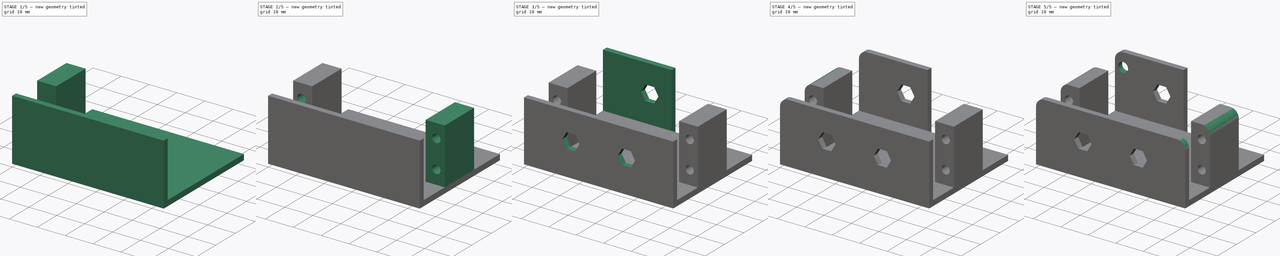
[diagram: build sequence overview — one tinted view per stage of 5, left to right]
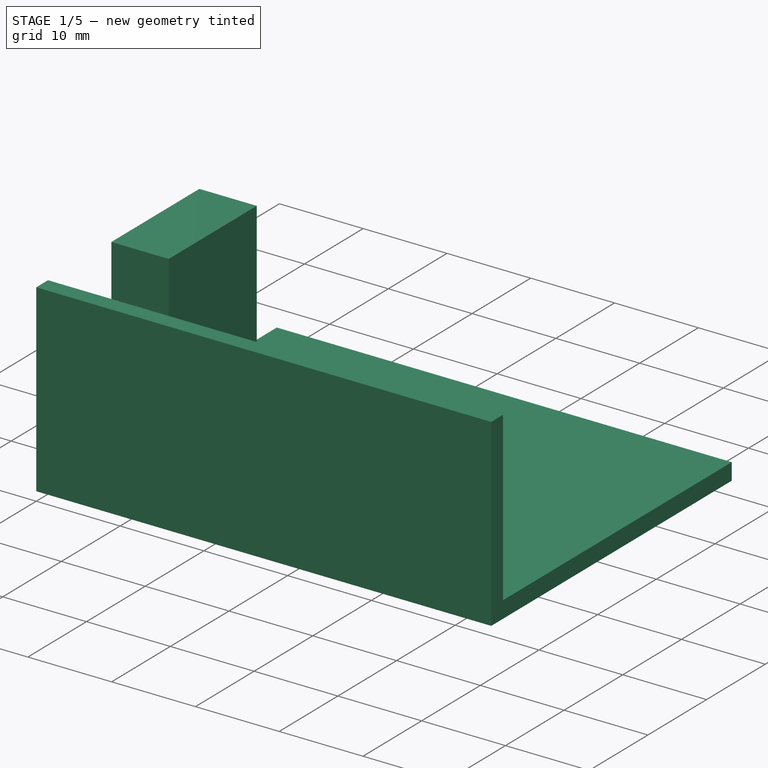
[diagram: stage 1 of 5 — iso view after this stage's code; geometry added in this stage tinted green]
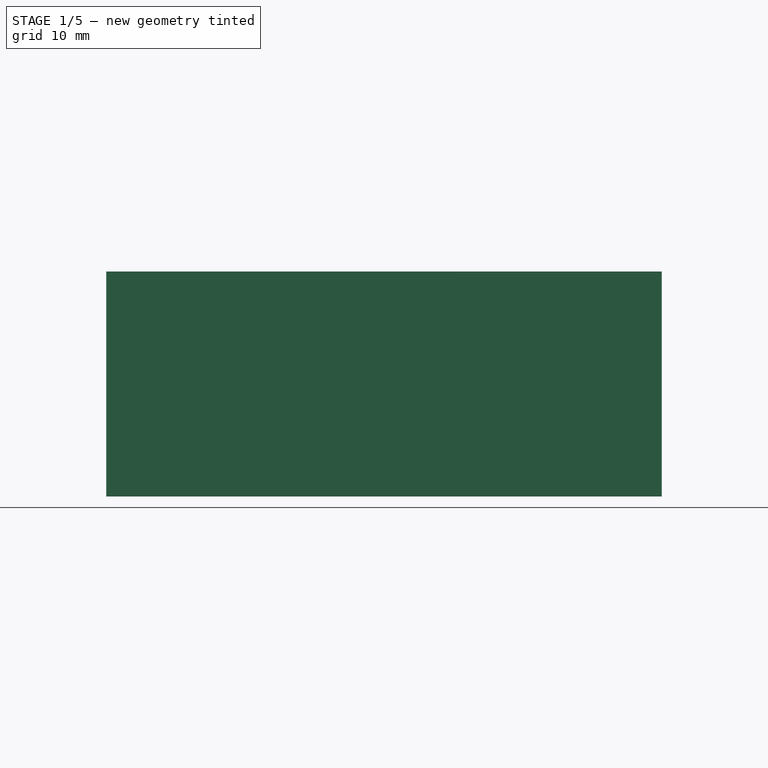
[diagram: stage 1 of 5 — front view after this stage's code; geometry added in this stage tinted green]
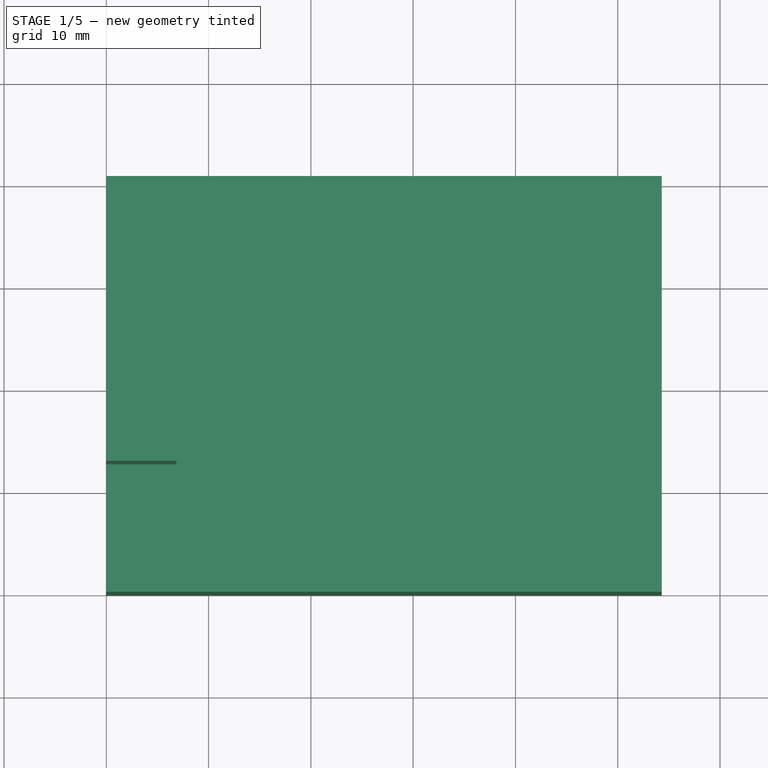
[diagram: stage 1 of 5 — top view after this stage's code; geometry added in this stage tinted green]
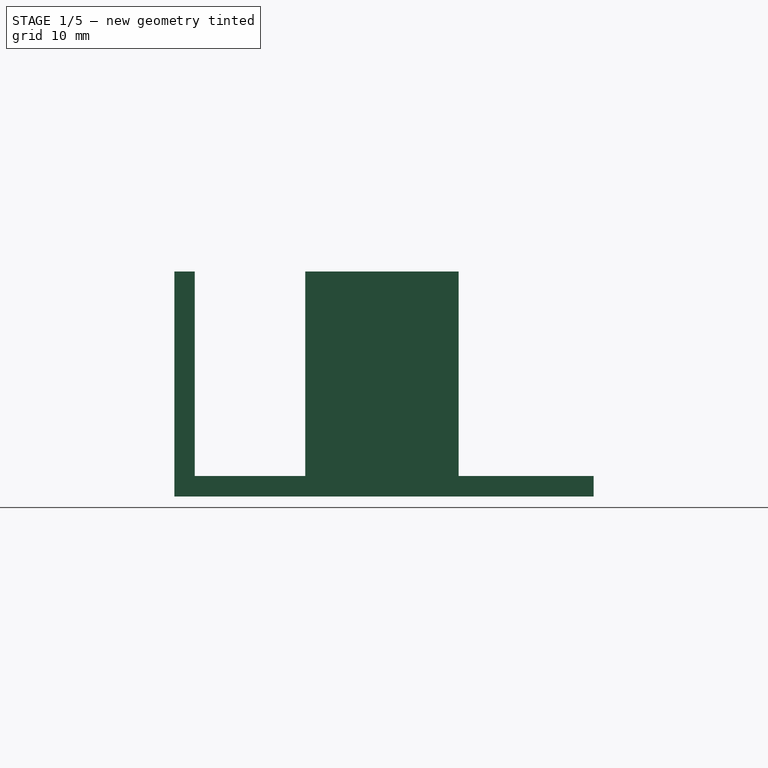
[diagram: stage 1 of 5 — right view after this stage's code; geometry added in this stage tinted green]
FCSTD DOCUMENT  (FreeCAD 0.20R29177 +426 (Git))
Label: headBigServoHolder
License: All rights reserved
LicenseURL: http://en.wikipedia.org/wiki/All_rights_reserved
objects: Sketcher::SketchObject×10, PartDesign::Pad×5, PartDesign::Pocket×5, PartDesign::Fillet×5, Spreadsheet::Sheet×1, PartDesign::Body×1
note: 41 computed .brp shape members not serialized (recipe doc carries the construction recipe); baked Part::Feature solids carry a one-line shape summary decoded from their .brp

FEATURE [Spreadsheet::Sheet] Spreadsheet
  cells = A1=tolerance; B1(tolerance)=0.2; A2=thickness; B2(thickness)=2; A3=servo_outer_x; B3(servo_x)=54.3; A4=servo_inner_x; B4(servo_inner_x)=40.2; A5=servo_y; B5(servo_y)=39; D5=sketch 41,5 real 38,0; A6=servo_z; B6(servo_z)=20; A7=foothold_y_len; B7(foothold_y_len)=15; A8=foothold_y_pos; B8(foothold_y_pos)==25.8 + B2; C8=c; D8=sketch 27.8 real 25,1; A9=foothold_z_len; B9(foothold_z_len)==B6 + B2; C9=c; A10=foothold_x_len; B10(foothold_x_len)==(B3 - B4) / 2 - B1; C10=c; A11=upper_hole_z_pos; B11(upper_hole_z_pos)==15 + B2; C11=c; A12=lower_hole_z_pos; B12(lower_hole_z_pos)==5 + B2; C12=c; A13=hole_x_pos; B13(hole_x_pos)=3; A14=hole_diameter; B14(hole_diameter)=3; A15=axis_x_pos; B15(axis_x_pos)=37.25; A16=axis_z_pos; B16(axis_z_pos)==10 + B2; A17=axis_y_pos; B17(axis_y_pos)=0; A18=axis_diameter; B18(axis_diameter)=5.9; A19=axis_length; B19(axis_length)=5; A20=plate_y_dim; B20(plate_y_dim)==B5 + B2; C20=c
FEATURE [Sketcher::SketchObject] Sketch
  FullyConstrained = true
  MapMode = 5
  Support = -> [XY_Plane]
  expr: Constraints[10] = Spreadsheet.servo_y
  expr: Constraints[11] = Spreadsheet.thickness
  expr: Constraints[9] = Spreadsheet.servo_x
  sketch-geometry (4):
    g0: LineSegment StartX=0 StartY=41 StartZ=0 EndX=54.3 EndY=41 EndZ=0
    g1: LineSegment StartX=54.3 StartY=41 StartZ=0 EndX=54.3 EndY=2 EndZ=0
    g2: LineSegment StartX=54.3 StartY=2 StartZ=0 EndX=0 EndY=2 EndZ=0
    g3: LineSegment StartX=0 StartY=2 StartZ=0 EndX=0 EndY=41 EndZ=0
  constraints (12):
    c: Coincident(g0,g1)
    c: Coincident(g1,g2)
    c: Coincident(g2,g3)
    c: Coincident(g3,g0)
    c: Horizontal(g0)
    c: Horizontal(g2)
    c: Vertical(g1)
    c: Vertical(g3)
    c: PointOnObject(g0,g-2)
    c: DistanceX(g2,g2) = 54.3
    c: DistanceY(g3,g3) = 39
    c: DistanceY(g-1,g2) = 2
FEATURE [PartDesign::Pad] Pad  label="plate"
  Direction = (0,0,1)
  Length = 2
  Length2 = 10
  Profile = -> Sketch
  ReferenceAxis = -> Sketch [N_Axis]
  Type = 0
  expr: Length = Spreadsheet.thickness
FEATURE [Sketcher::SketchObject] Sketch001
  ExternalGeometry = -> [Pad]
  FullyConstrained = true
  MapMode = 5
  Support = -> [XY_Plane]
  expr: Constraints[7] = 2
  sketch-geometry (4):
    g0: LineSegment StartX=0 StartY=0 StartZ=0 EndX=54.3 EndY=0 EndZ=0
    g1: LineSegment StartX=54.3 StartY=0 StartZ=0 EndX=54.3 EndY=2 EndZ=0
    g2: LineSegment StartX=54.3 StartY=2 StartZ=0 EndX=0 EndY=2 EndZ=0
    g3: LineSegment StartX=0 StartY=2 StartZ=0 EndX=0 EndY=0 EndZ=0
  constraints (10):
    c: Coincident(g0,g1)
    c: Coincident(g1,g2)
    c: Coincident(g2,g3)
    c: Coincident(g3,g0)
    c: Horizontal(g0)
    c: Vertical(g1)
    c: Vertical(g3)
    c: DistanceY(g1,g1) = 2
    c: Coincident(g1,g-3)
    c: Coincident(g2,g-3)
FEATURE [PartDesign::Pad] Pad001  label="back"
  BaseFeature = -> Pad
  Direction = (0,0,1)
  Length = 22
  Length2 = 10
  Profile = -> Sketch001
  ReferenceAxis = -> Sketch001 [N_Axis]
  Type = 0
  expr: Length = Spreadsheet.servo_z + Spreadsheet.thickness
FEATURE [Sketcher::SketchObject] Sketch003
  FullyConstrained = true
  MapMode = 5
  Support = -> [XY_Plane]
  expr: Constraints[10] = Spreadsheet.foothold_y_len
  expr: Constraints[11] = Spreadsheet.foothold_x_len
  expr: Constraints[9] = Spreadsheet.foothold_y_pos
  sketch-geometry (4):
    g0: LineSegment StartX=0 StartY=27.8 StartZ=0 EndX=6.85 EndY=27.8 EndZ=0
    g1: LineSegment StartX=6.85 StartY=27.8 StartZ=0 EndX=6.85 EndY=12.8 EndZ=0
    g2: LineSegment StartX=6.85 StartY=12.8 StartZ=0 EndX=0 EndY=12.8 EndZ=0
    g3: LineSegment StartX=0 StartY=12.8 StartZ=0 EndX=0 EndY=27.8 EndZ=0
  constraints (12):
    c: Coincident(g0,g1)
    c: Coincident(g1,g2)
    c: Coincident(g2,g3)
    c: Coincident(g3,g0)
    c: Horizontal(g0)
    c: Horizontal(g2)
    c: Vertical(g1)
    c: Vertical(g3)
    c: PointOnObject(g0,g-2)
    c: DistanceY(g-1,g0) = 27.8
    c: DistanceY(g2,g0) = 15
    c: DistanceX(g2,g1) = 6.85
FEATURE [PartDesign::Pad] Pad003  label="foothold_left"
  BaseFeature = -> Pad001
  Direction = (0,0,1)
  Length = 22
  Length2 = 10
  Profile = -> Sketch003
  ReferenceAxis = -> Sketch003 [N_Axis]
  Type = 0
  expr: Length = Spreadsheet.foothold_z_len
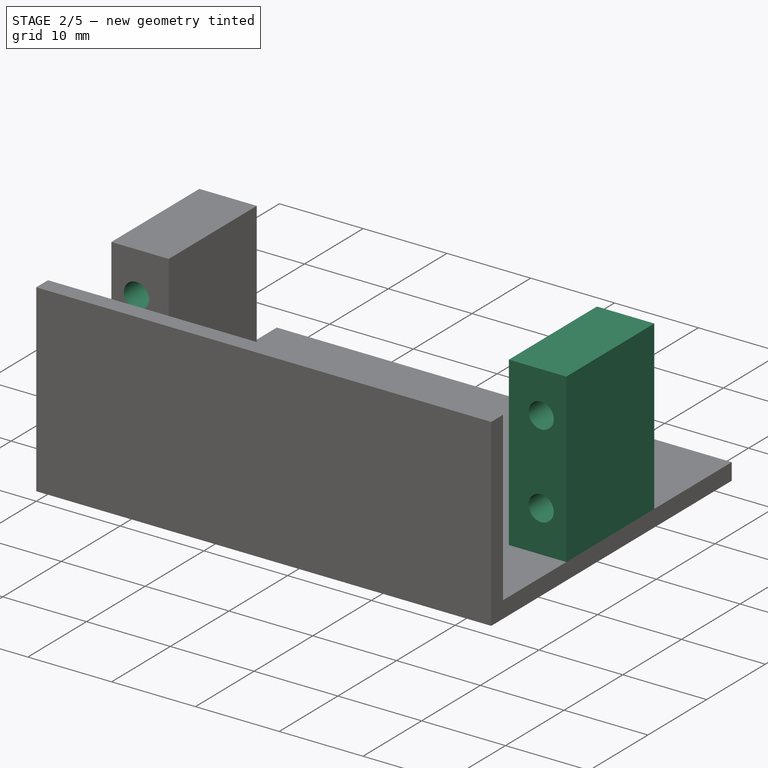
[diagram: stage 2 of 5 — iso view after this stage's code; geometry added in this stage tinted green]
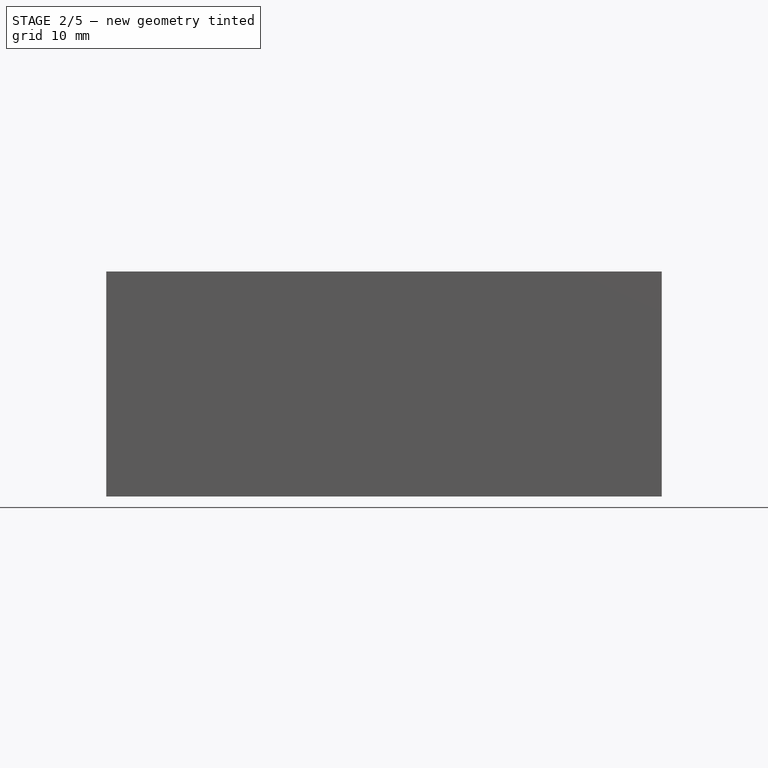
[diagram: stage 2 of 5 — front view after this stage's code; geometry added in this stage tinted green]
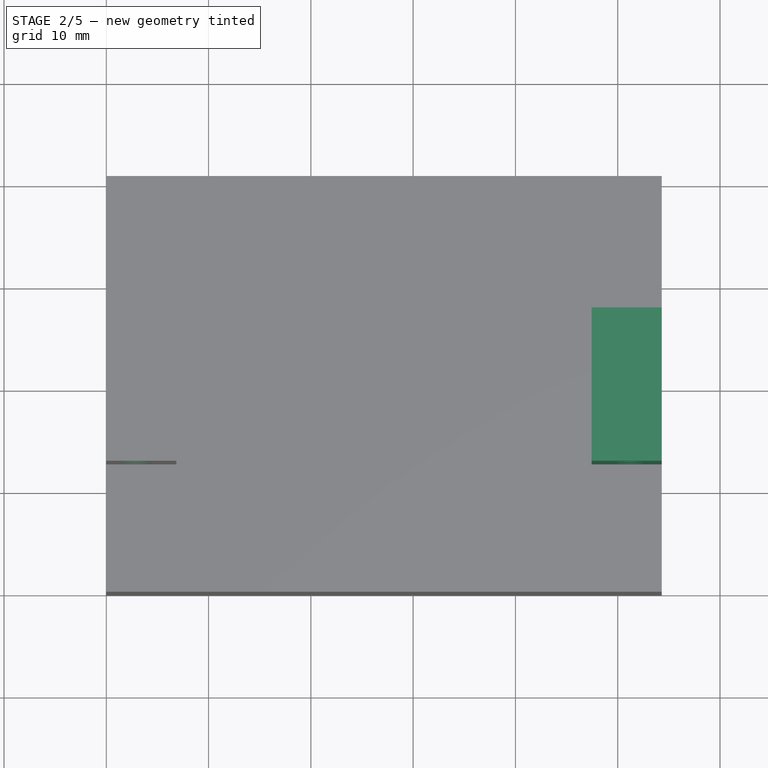
[diagram: stage 2 of 5 — top view after this stage's code; geometry added in this stage tinted green]
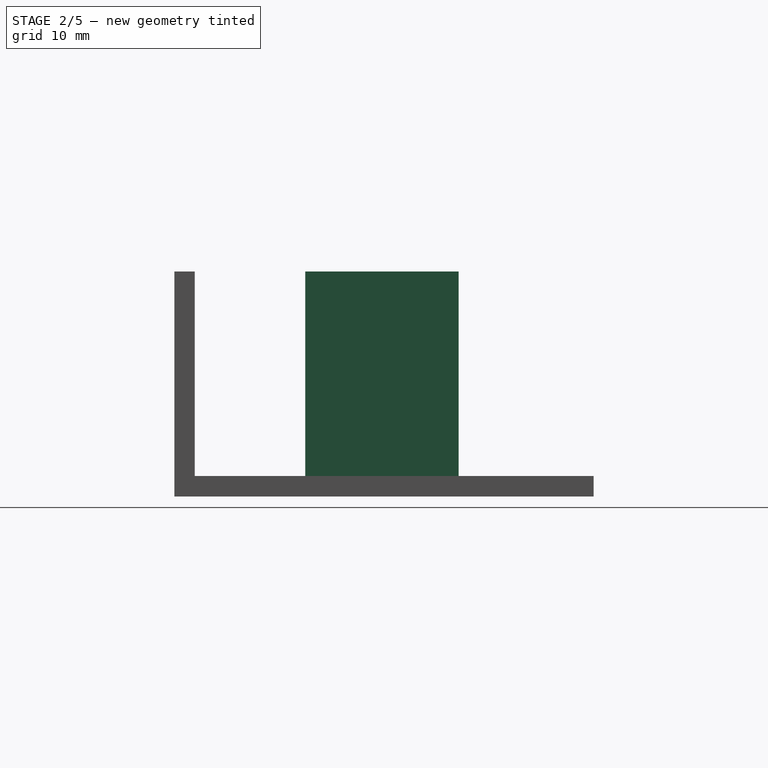
[diagram: stage 2 of 5 — right view after this stage's code; geometry added in this stage tinted green]
FEATURE [Sketcher::SketchObject] Sketch004
  FullyConstrained = true
  MapMode = 5
  Placement = pos=(0,27.8,0) rot=(0,0.707107,0.707107;3.14159rad)
  Support = -> [Pad003]
  expr: Constraints[0] = Spreadsheet.upper_hole_z_pos
  expr: Constraints[1] = Spreadsheet.lower_hole_z_pos
  expr: Constraints[2] = Spreadsheet.hole_x_pos
  expr: Constraints[4] = Spreadsheet.hole_diameter
  expr: Constraints[5] = Spreadsheet.hole_diameter
  sketch-geometry (2):
    g0: Circle CenterX=-3 CenterY=17 CenterZ=0 NormalX=0 NormalY=0 NormalZ=1 AngleXU=0 Radius=1.5
    g1: Circle CenterX=-3 CenterY=7 CenterZ=0 NormalX=0 NormalY=0 NormalZ=1 AngleXU=0 Radius=1.5
  constraints (6):
    c: DistanceY(g-1,g0) = 17
    c: DistanceY(g-1,g1) = 7
    c: DistanceX(g1,g-1) = 3
    c: Vertical(g0,g1)
    c: Diameter(g1) = 3
    c: Diameter(g0) = 3
FEATURE [PartDesign::Pocket] Pocket  label="foothold_left_holes"
  BaseFeature = -> Pad003
  Direction = (0,-1,2e-16)
  Length = 15
  Length2 = 5
  Profile = -> Sketch004
  ReferenceAxis = -> Sketch004 [N_Axis]
  Type = 0
  expr: Length = Spreadsheet.foothold_y_len
FEATURE [Sketcher::SketchObject] Sketch005
  ExternalGeometry = -> [Pocket]
  FullyConstrained = true
  MapMode = 5
  Support = -> [XY_Plane]
  expr: Constraints[10] = Spreadsheet.foothold_y_pos
  expr: Constraints[8] = Spreadsheet.foothold_y_len
  expr: Constraints[9] = Spreadsheet.foothold_x_len
  sketch-geometry (4):
    g0: LineSegment StartX=47.45 StartY=27.8 StartZ=0 EndX=54.3 EndY=27.8 EndZ=0
    g1: LineSegment StartX=54.3 StartY=27.8 StartZ=0 EndX=54.3 EndY=12.8 EndZ=0
    g2: LineSegment StartX=54.3 StartY=12.8 StartZ=0 EndX=47.45 EndY=12.8 EndZ=0
    g3: LineSegment StartX=47.45 StartY=12.8 StartZ=0 EndX=47.45 EndY=27.8 EndZ=0
  constraints (12):
    c: Coincident(g0,g1)
    c: Coincident(g1,g2)
    c: Coincident(g2,g3)
    c: Coincident(g3,g0)
    c: Horizontal(g0)
    c: Horizontal(g2)
    c: Vertical(g1)
    c: Vertical(g3)
    c: DistanceY(g1,g0) = 15
    c: DistanceX(g0,g0) = 6.85
    c: DistanceY(g-1,g0) = 27.8
    c: Vertical(g1,g-4)
FEATURE [PartDesign::Pad] Pad004  label="foothold_right"
  BaseFeature = -> Pocket
  Direction = (0,0,1)
  Length = 22
  Length2 = 10
  Profile = -> Sketch005
  ReferenceAxis = -> Sketch005 [N_Axis]
  Type = 0
  expr: Length = Spreadsheet.foothold_z_len
FEATURE [Sketcher::SketchObject] Sketch006
  ExternalGeometry = -> [Pad004]
  FullyConstrained = true
  MapMode = 5
  Placement = pos=(0,27.8,0) rot=(0,0.707107,0.707107;3.14159rad)
  Support = -> [Pad004]
  expr: Constraints[0] = Spreadsheet.lower_hole_z_pos
  expr: Constraints[1] = Spreadsheet.hole_diameter
  expr: Constraints[2] = Spreadsheet.hole_diameter
  expr: Constraints[3] = Spreadsheet.upper_hole_z_pos
  expr: Constraints[4] = Spreadsheet.hole_x_pos
  expr: Constraints[5] = Spreadsheet.hole_x_pos
  sketch-geometry (2):
    g0: Circle CenterX=-51.3 CenterY=17 CenterZ=0 NormalX=0 NormalY=0 NormalZ=1 AngleXU=0 Radius=1.5
    g1: Circle CenterX=-51.3 CenterY=7 CenterZ=0 NormalX=0 NormalY=0 NormalZ=1 AngleXU=0 Radius=1.5
  constraints (6):
    c: DistanceY(g-3,g1) = 7
    c: Diameter(g1) = 3
    c: Diameter(g0) = 3
    c: DistanceY(g-3,g0) = 17
    c: DistanceX(g-4,g1) = 3
    c: DistanceX(g-4,g0) = 3
FEATURE [PartDesign::Pocket] Pocket001  label="footfold_right_holes"
  BaseFeature = -> Pad004
  Direction = (0,-1,2e-16)
  Length = 15
  Length2 = 5
  Profile = -> Sketch006
  ReferenceAxis = -> Sketch006 [N_Axis]
  Type = 0
  expr: Length = Spreadsheet.foothold_y_len
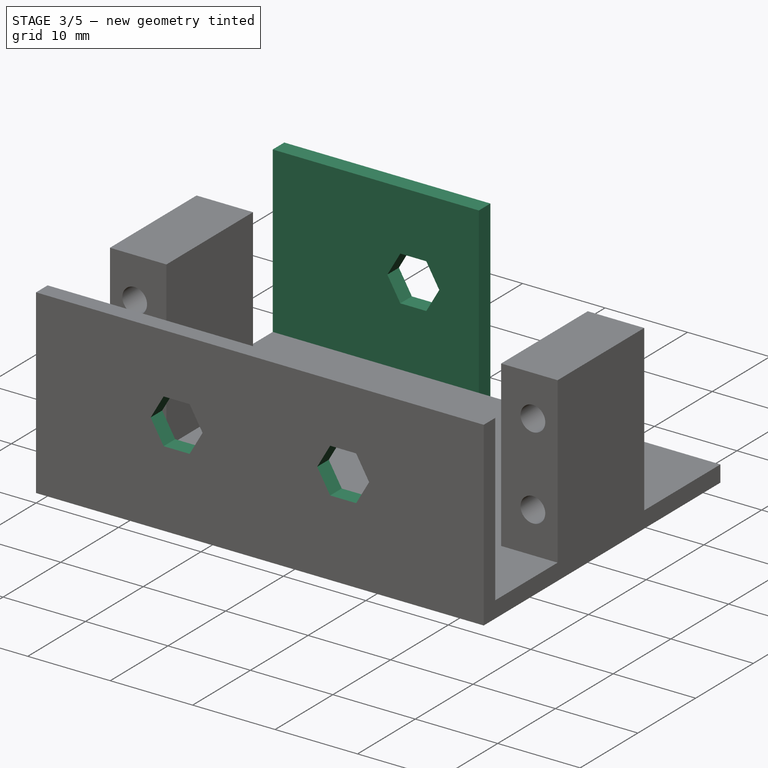
[diagram: stage 3 of 5 — iso view after this stage's code; geometry added in this stage tinted green]
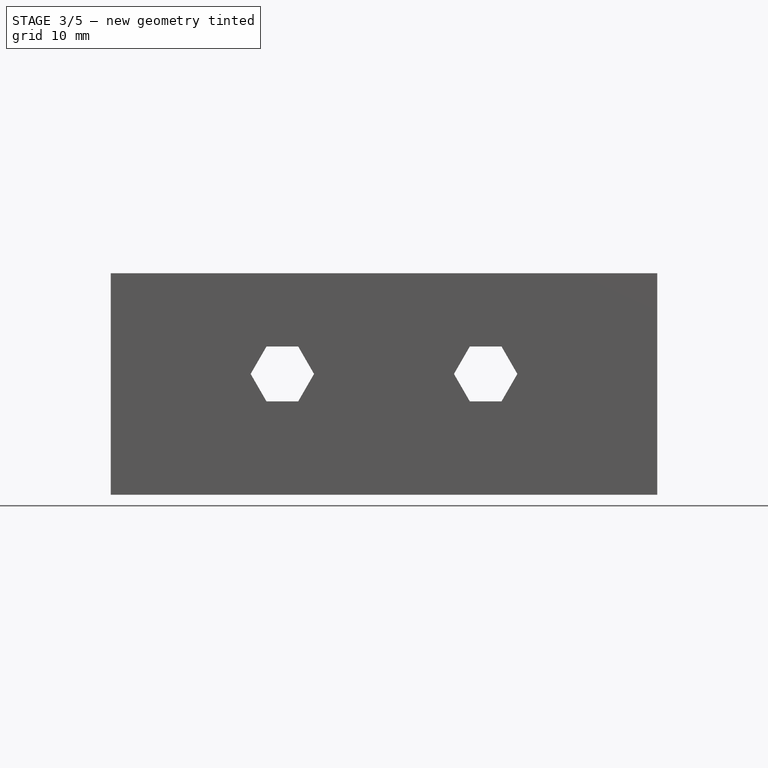
[diagram: stage 3 of 5 — front view after this stage's code; geometry added in this stage tinted green]
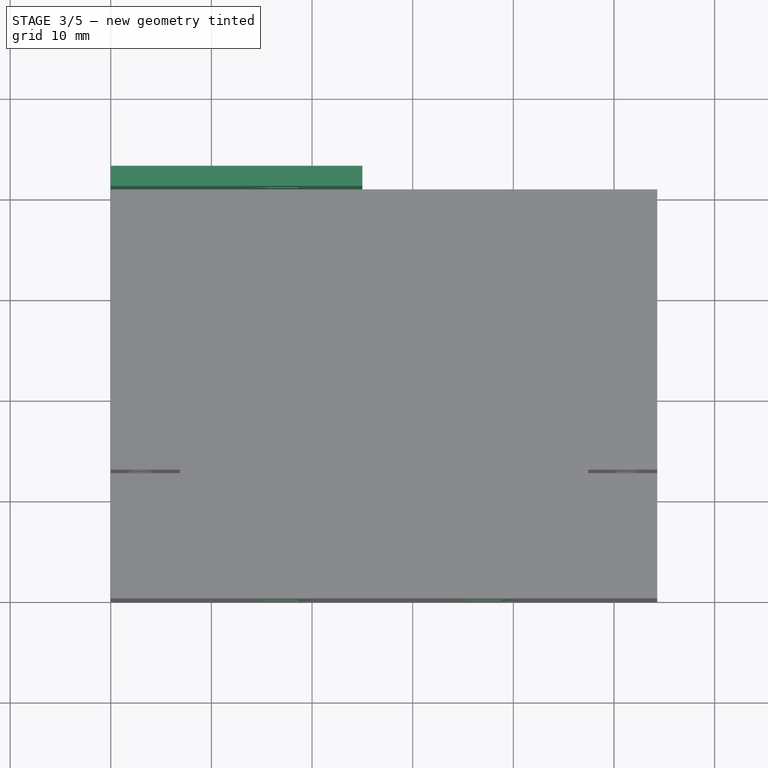
[diagram: stage 3 of 5 — top view after this stage's code; geometry added in this stage tinted green]
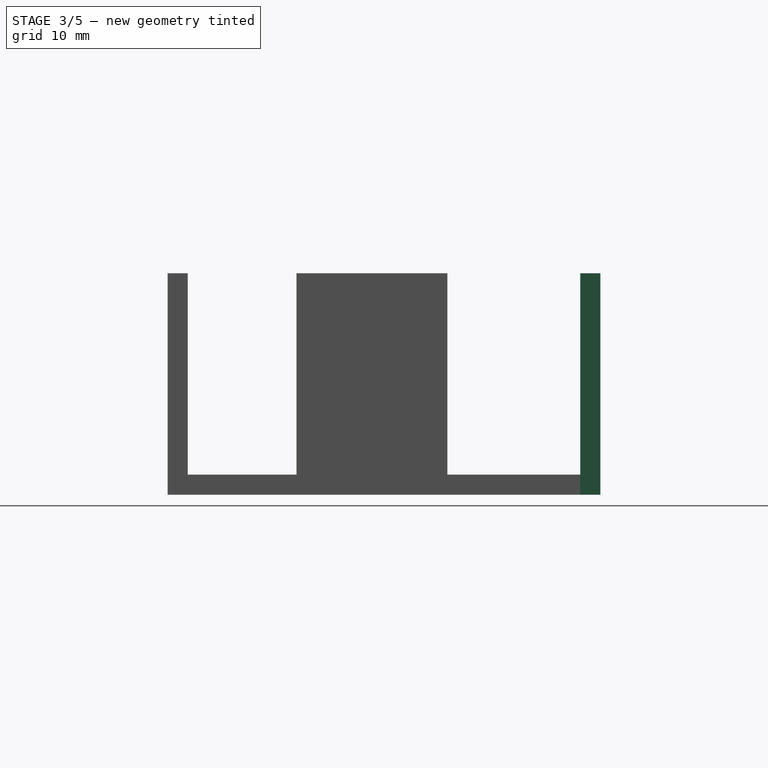
[diagram: stage 3 of 5 — right view after this stage's code; geometry added in this stage tinted green]
FEATURE [Sketcher::SketchObject] Sketch007
  ExternalGeometry = -> [Pocket001]
  FullyConstrained = true
  MapMode = 5
  Placement = pos=(0,0,0) rot=(1,0,0;3.14159rad)
  Support = -> [Pocket001]
  expr: Constraints[10] = 25
  sketch-geometry (4):
    g0: LineSegment StartX=0 StartY=-41 StartZ=0 EndX=25 EndY=-41 EndZ=0
    g1: LineSegment StartX=25 StartY=-41 StartZ=0 EndX=25 EndY=-43 EndZ=0
    g2: LineSegment StartX=25 StartY=-43 StartZ=0 EndX=0 EndY=-43 EndZ=0
    g3: LineSegment StartX=0 StartY=-43 StartZ=0 EndX=0 EndY=-41 EndZ=0
  constraints (11):
    c: Coincident(g0,g1)
    c: Coincident(g1,g2)
    c: Coincident(g2,g3)
    c: Coincident(g3,g0)
    c: Horizontal(g2)
    c: Vertical(g1)
    c: Vertical(g3)
    c: Coincident(g0,g-4)
    c: DistanceY(g1,g1) = 2
    c: PointOnObject(g0,g-5)
    c: DistanceX(g2,g2) = 25
FEATURE [PartDesign::Pad] Pad005  label="front"
  BaseFeature = -> Pocket001
  Direction = (0,0,-1)
  Length = 22
  Length2 = 10
  Profile = -> Sketch007
  ReferenceAxis = -> Sketch007 [N_Axis]
  Reversed = true
  Type = 0
  expr: Length = Spreadsheet.servo_z + Spreadsheet.thickness
FEATURE [Sketcher::SketchObject] Sketch008
  ExternalGeometry = -> [Pad005]
  FullyConstrained = true
  MapMode = 5
  Placement = pos=(0,2,0) rot=(0,0.707107,0.707107;3.14159rad)
  Support = -> [Pad005]
  expr: Constraints[34] = Spreadsheet.axis_z_pos
  expr: Constraints[35] = Spreadsheet.axis_z_pos
  expr: Constraints[36] = Spreadsheet.axis_x_pos
  expr: Constraints[37] = Spreadsheet.axis_x_pos
  sketch-geometry (14):
    g0: LineSegment StartX=-34.1 StartY=12 StartZ=0 EndX=-35.675 EndY=14.728 EndZ=0
    g1: LineSegment StartX=-35.675 StartY=14.728 StartZ=0 EndX=-38.825 EndY=14.728 EndZ=0
    g2: LineSegment StartX=-38.825 StartY=14.728 StartZ=0 EndX=-40.4 EndY=12 EndZ=0
    g3: LineSegment StartX=-40.4 StartY=12 StartZ=0 EndX=-38.825 EndY=9.27202 EndZ=0
    g4: LineSegment StartX=-38.825 StartY=9.27202 StartZ=0 EndX=-35.675 EndY=9.27202 EndZ=0
    g5: LineSegment StartX=-35.675 StartY=9.27202 StartZ=0 EndX=-34.1 EndY=12 EndZ=0
    g6: Circle CenterX=-37.25 CenterY=12 CenterZ=0 NormalX=0 NormalY=0 NormalZ=1 AngleXU=0 Radius=3.15
    g7: LineSegment StartX=-15.475 StartY=14.728 StartZ=0 EndX=-18.625 EndY=14.728 EndZ=0
    g8: LineSegment StartX=-18.625 StartY=14.728 StartZ=0 EndX=-20.2 EndY=12 EndZ=0
    g9: LineSegment StartX=-20.2 StartY=12 StartZ=0 EndX=-18.625 EndY=9.27202 EndZ=0
    g10: LineSegment StartX=-18.625 StartY=9.27202 StartZ=0 EndX=-15.475 EndY=9.27202 EndZ=0
    g11: LineSegment StartX=-15.475 StartY=9.27202 StartZ=0 EndX=-13.9 EndY=12 EndZ=0
    g12: LineSegment StartX=-13.9 StartY=12 StartZ=0 EndX=-15.475 EndY=14.728 EndZ=0
    g13: Circle CenterX=-17.05 CenterY=12 CenterZ=0 NormalX=0 NormalY=0 NormalZ=1 AngleXU=0 Radius=3.15
  constraints (34):
    c: Coincident(g0,g1)
    c: Coincident(g1,g2)
    c: Coincident(g2,g3)
    c: Coincident(g3,g4)
    c: Coincident(g4,g5)
    c: Coincident(g5,g0)
    c: Equal(g0, g1-g5) x5
    c: PointOnObject(g0,g6)
    c: PointOnObject(g1,g6)
    c: PointOnObject(g2,g6)
    c: PointOnObject(g3,g6)
    c: PointOnObject(g4,g6)
    c: PointOnObject(g5,g6)
    c: Coincident(g7,g8)
    c: Coincident(g8,g9)
    c: Coincident(g9,g10)
    c: Coincident(g10,g11)
    c: Coincident(g11,g12)
    c: Coincident(g12,g7)
    c: Equal(g7, g8-g12) x5
    c: PointOnObject(g7,g13)
    c: PointOnObject(g8,g13)
    c: PointOnObject(g9,g13)
    c: PointOnObject(g10,g13)
    c: PointOnObject(g11,g13)
    c: PointOnObject(g12,g13)
    c: DistanceY(g-3,g6) = 12
    c: DistanceY(g-1,g13) = 12
    c: DistanceX(g-3,g13) = 37.25
    c: DistanceX(g6,g-1) = 37.25
    c: Diameter(g6) = 6.3
    c: Diameter(g13) = 6.3
    c: Horizontal(g2,g0)
    c: Horizontal(g8,g11)
FEATURE [PartDesign::Pocket] Pocket002  label="backHoles"
  BaseFeature = -> Pad005
  Direction = (0,-1,2e-16)
  Length = 2.5
  Length2 = 5
  Profile = -> Sketch008
  ReferenceAxis = -> Sketch008 [N_Axis]
  Type = 0
FEATURE [Sketcher::SketchObject] Sketch009
  ExternalGeometry = -> [Pocket002]
  FullyConstrained = true
  MapMode = 5
  Placement = pos=(0,43,0) rot=(0,0.707107,0.707107;3.14159rad)
  Support = -> [Pocket002]
  expr: Constraints[17] = Spreadsheet.axis_z_pos
  expr: Constraints[18] = Spreadsheet.axis_x_pos
  sketch-geometry (7):
    g0: LineSegment StartX=-13.9 StartY=12 StartZ=0 EndX=-15.475 EndY=14.728 EndZ=0
    g1: LineSegment StartX=-15.475 StartY=14.728 StartZ=0 EndX=-18.625 EndY=14.728 EndZ=0
    g2: LineSegment StartX=-18.625 StartY=14.728 StartZ=0 EndX=-20.2 EndY=12 EndZ=0
    g3: LineSegment StartX=-20.2 StartY=12 StartZ=0 EndX=-18.625 EndY=9.27202 EndZ=0
    g4: LineSegment StartX=-18.625 StartY=9.27202 StartZ=0 EndX=-15.475 EndY=9.27202 EndZ=0
    g5: LineSegment StartX=-15.475 StartY=9.27202 StartZ=0 EndX=-13.9 EndY=12 EndZ=0
    g6: Circle CenterX=-17.05 CenterY=12 CenterZ=0 NormalX=0 NormalY=0 NormalZ=1 AngleXU=0 Radius=3.15
  constraints (17):
    c: Coincident(g0,g1)
    c: Coincident(g1,g2)
    c: Coincident(g2,g3)
    c: Coincident(g3,g4)
    c: Coincident(g4,g5)
    c: Coincident(g5,g0)
    c: Equal(g0, g1-g5) x5
    c: PointOnObject(g0,g6)
    c: PointOnObject(g1,g6)
    c: PointOnObject(g2,g6)
    c: PointOnObject(g3,g6)
    c: PointOnObject(g4,g6)
    c: PointOnObject(g5,g6)
    c: DistanceY(g-1,g6) = 12
    c: DistanceX(g-3,g6) = 37.25
    c: Diameter(g6) = 6.3
    c: Horizontal(g0,g2)
FEATURE [PartDesign::Pocket] Pocket003  label="frontHole"
  BaseFeature = -> Pocket002
  Direction = (0,-1,2e-16)
  Length = 5
  Length2 = 5
  Profile = -> Sketch009
  ReferenceAxis = -> Sketch009 [N_Axis]
  Type = 0
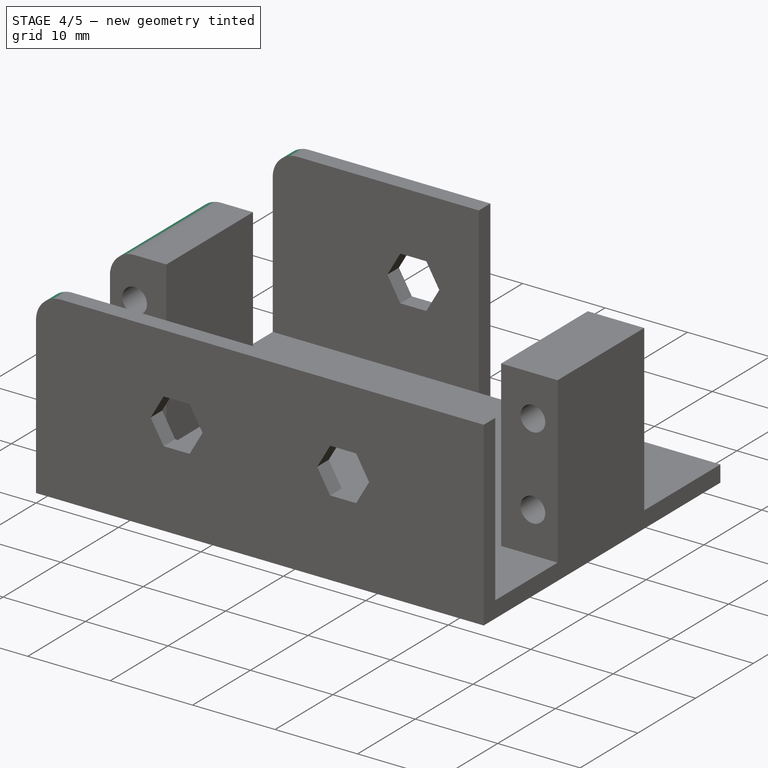
[diagram: stage 4 of 5 — iso view after this stage's code; geometry added in this stage tinted green]
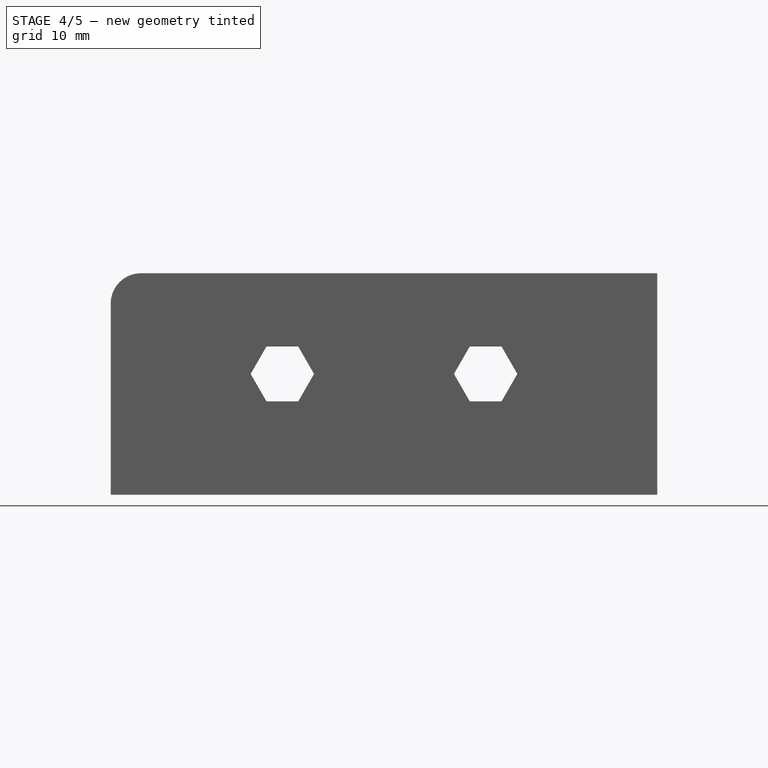
[diagram: stage 4 of 5 — front view after this stage's code; geometry added in this stage tinted green]
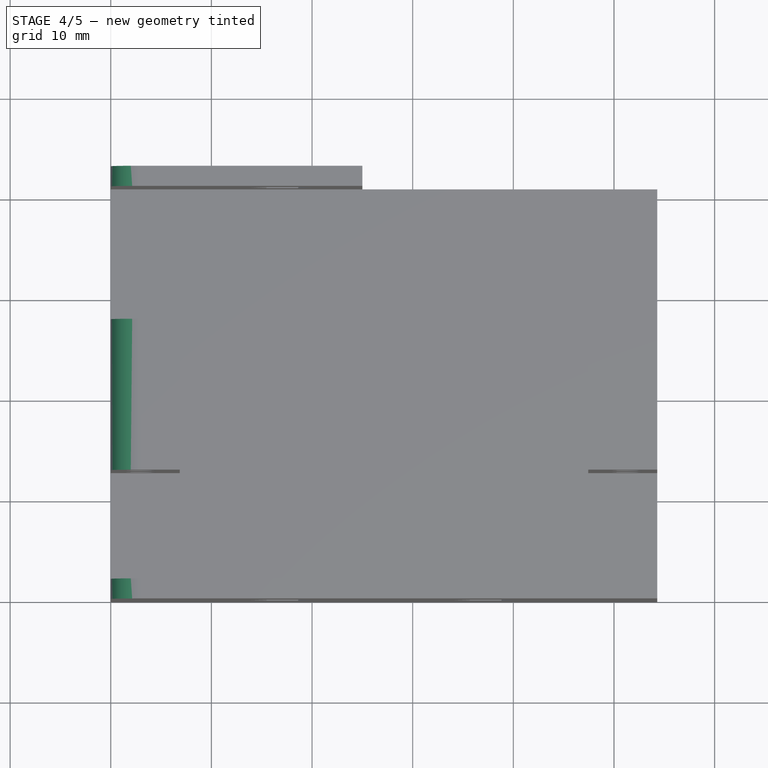
[diagram: stage 4 of 5 — top view after this stage's code; geometry added in this stage tinted green]
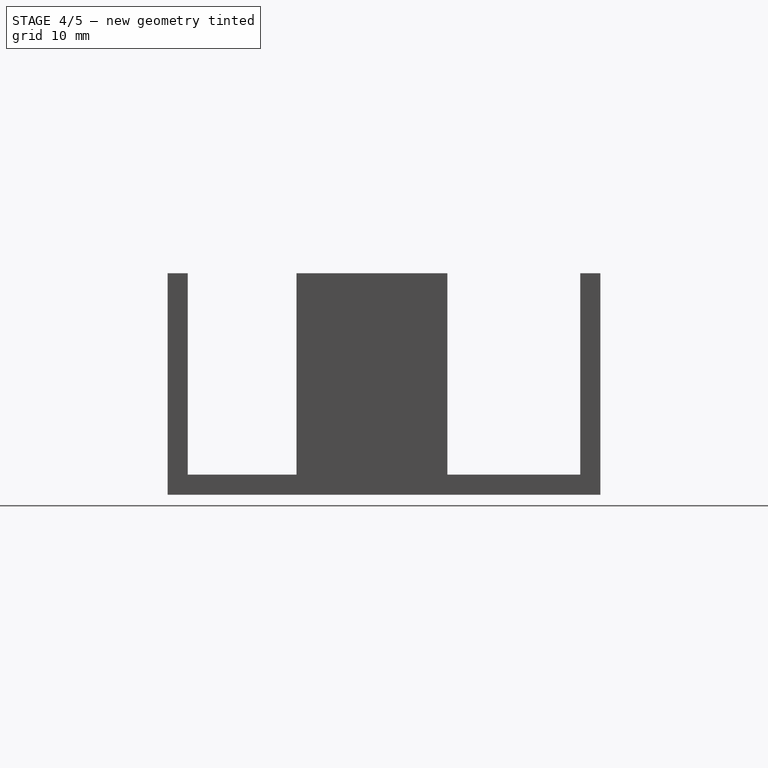
[diagram: stage 4 of 5 — right view after this stage's code; geometry added in this stage tinted green]
FEATURE [PartDesign::Fillet] Fillet
  Base = -> Pocket003 [Edge101]
  BaseFeature = -> Pocket003
  Radius = 3
  SupportTransform = false
  UseAllEdges = false
FEATURE [PartDesign::Fillet] Fillet001
  Base = -> Fillet [Edge117]
  BaseFeature = -> Fillet
  Radius = 3
  SupportTransform = false
  UseAllEdges = false
FEATURE [PartDesign::Fillet] Fillet002
  Base = -> Fillet001 [Edge146]
  BaseFeature = -> Fillet001
  Radius = 3
  SupportTransform = false
  UseAllEdges = false
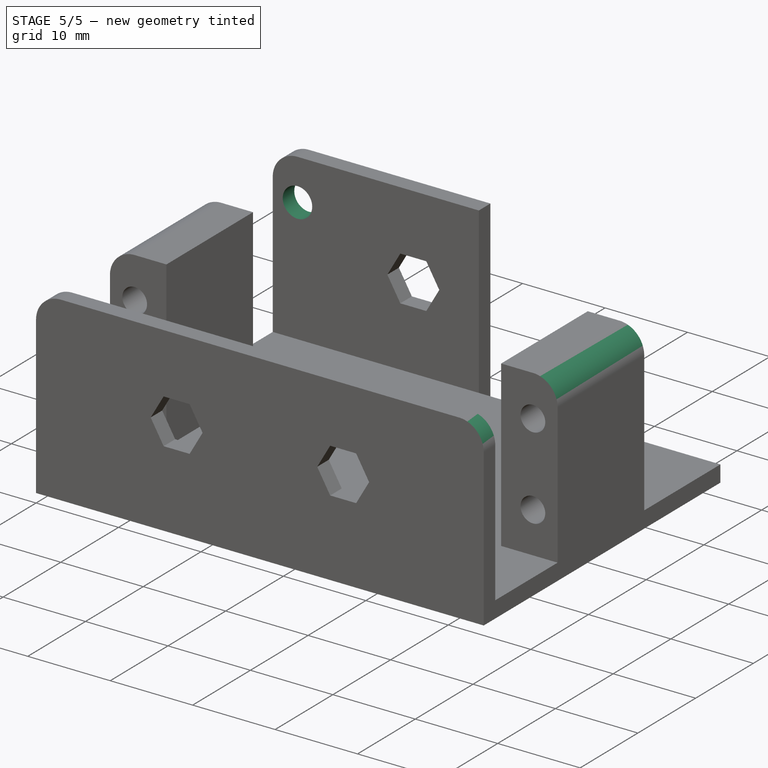
[diagram: stage 5 of 5 — iso view after this stage's code; geometry added in this stage tinted green]
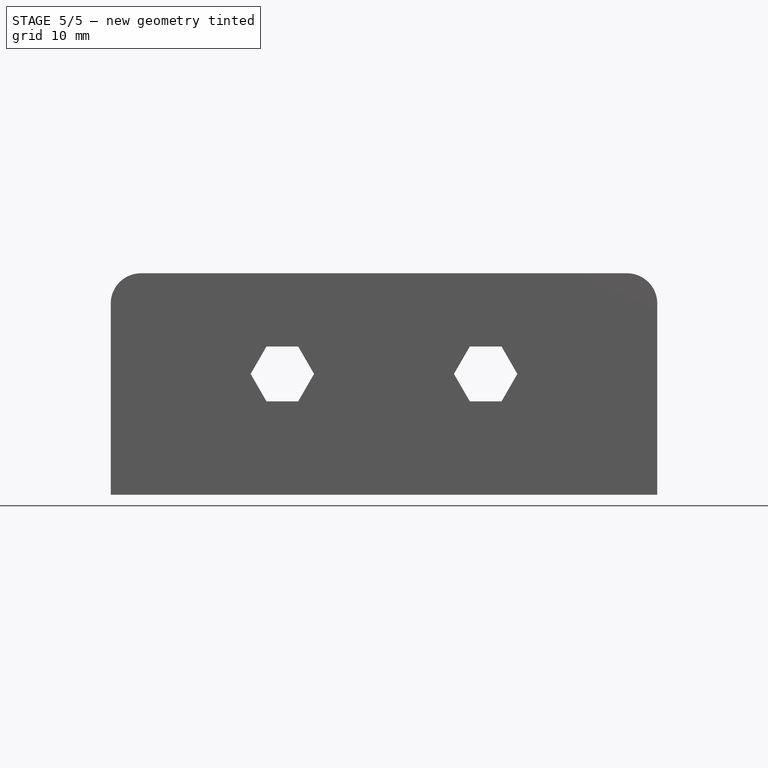
[diagram: stage 5 of 5 — front view after this stage's code; geometry added in this stage tinted green]
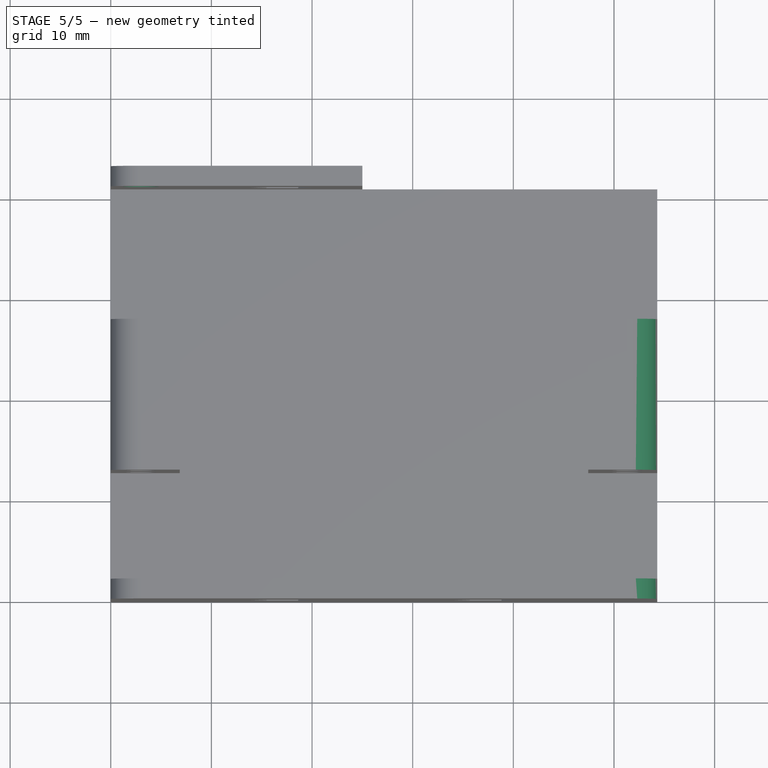
[diagram: stage 5 of 5 — top view after this stage's code; geometry added in this stage tinted green]
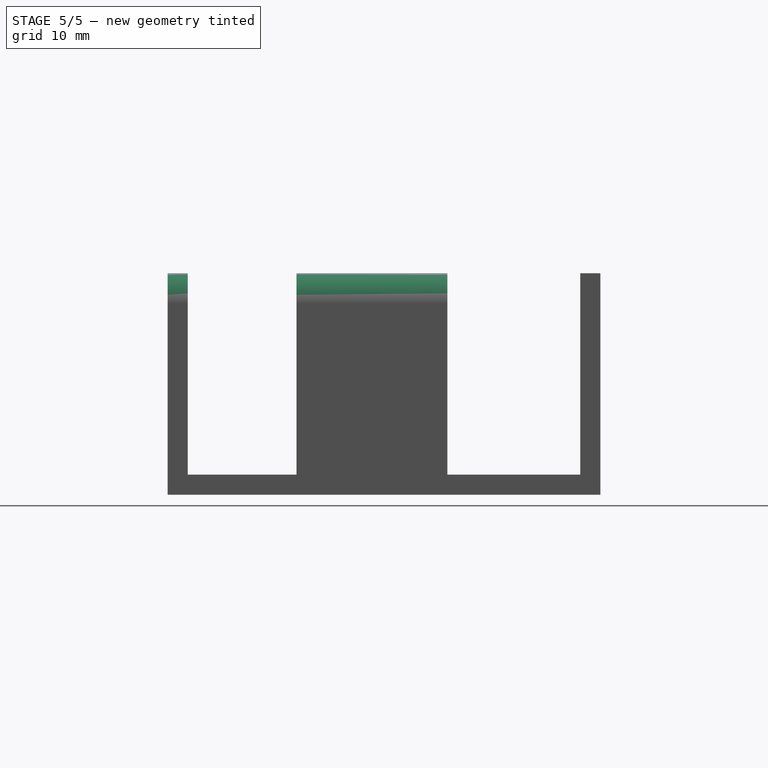
[diagram: stage 5 of 5 — right view after this stage's code; geometry added in this stage tinted green]
FEATURE [PartDesign::Fillet] Fillet003
  Base = -> Fillet002 [Edge120]
  BaseFeature = -> Fillet002
  Radius = 3
  SupportTransform = false
  UseAllEdges = false
FEATURE [PartDesign::Fillet] Fillet004
  Base = -> Fillet003 [Edge148]
  BaseFeature = -> Fillet003
  Radius = 3
  SupportTransform = false
  UseAllEdges = false
FEATURE [Sketcher::SketchObject] Sketch010
  FullyConstrained = true
  MapMode = 5
  Placement = pos=(0,43,0) rot=(0,0.707107,0.707107;3.14159rad)
  Support = -> [Fillet004]
  expr: Constraints[0] = Spreadsheet.hole_x_pos
  expr: Constraints[1] = Spreadsheet.upper_hole_z_pos
  expr: Constraints[2] = 3.5
  sketch-geometry (1):
    g0: Circle CenterX=-3 CenterY=17 CenterZ=0 NormalX=0 NormalY=0 NormalZ=1 AngleXU=0 Radius=1.78638
  constraints (3):
    c: DistanceX(g0,g-1) = 3
    c: DistanceY(g-1,g0) = 17
    c: Diameter(g0) = 3.57277
FEATURE [PartDesign::Pocket] Pocket004  label="screwDriverHoleFront"
  BaseFeature = -> Fillet004
  Direction = (0,-1,2e-16)
  Length = 5
  Length2 = 5
  Profile = -> Sketch010
  ReferenceAxis = -> Sketch010 [N_Axis]
  Type = 0
FEATURE [PartDesign::Body] Body
  Group = -> [Sketch,Pad,Sketch001,Pad001,Sketch003,Pad003,Sketch004,Pocket,Sketch005,Pad004,Sketch006,Pocket001,Sketch007,Pad005,Sketch008,Pocket002,Sketch009,Pocket003,Fillet,Fillet001,Fillet002,Fillet003,Fillet004,Sketch010,Pocket004]
  Origin = -> Origin
  Tip = -> Pocket004
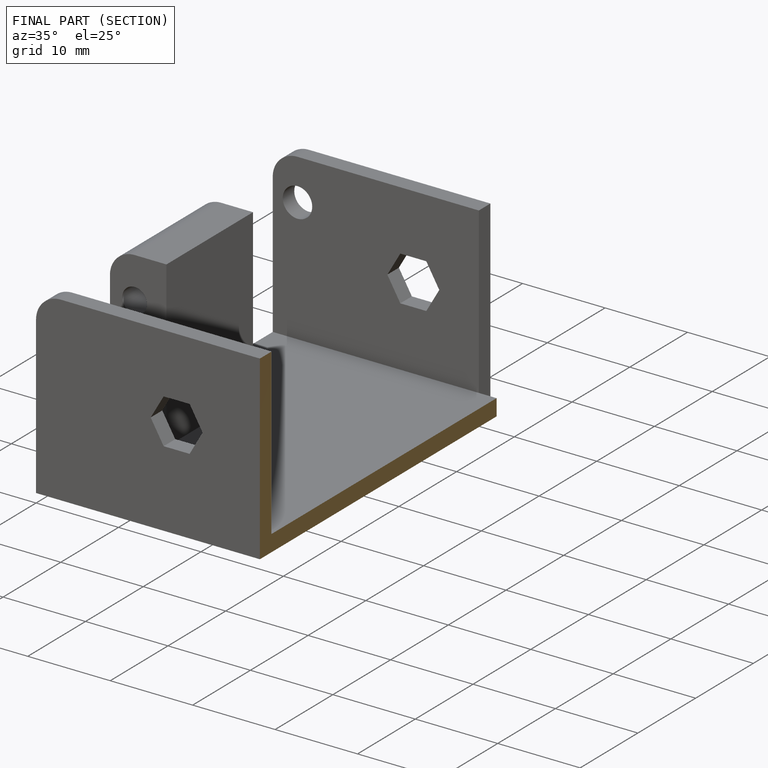
[diagram: finished part — half-section view (interior)]
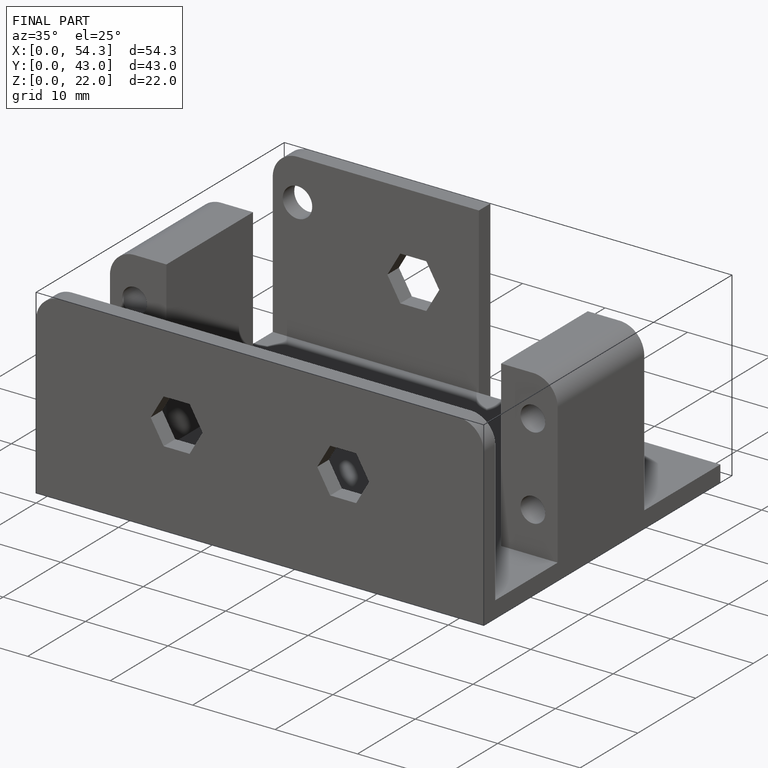
[diagram: finished part — iso view with bounding-box wireframe]
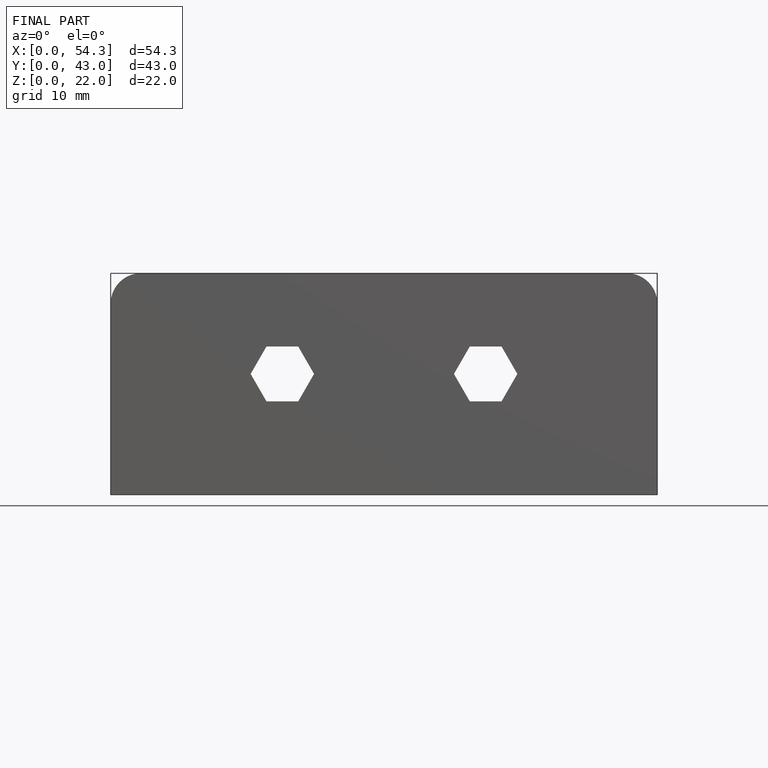
[diagram: finished part — front view with bounding-box wireframe]
